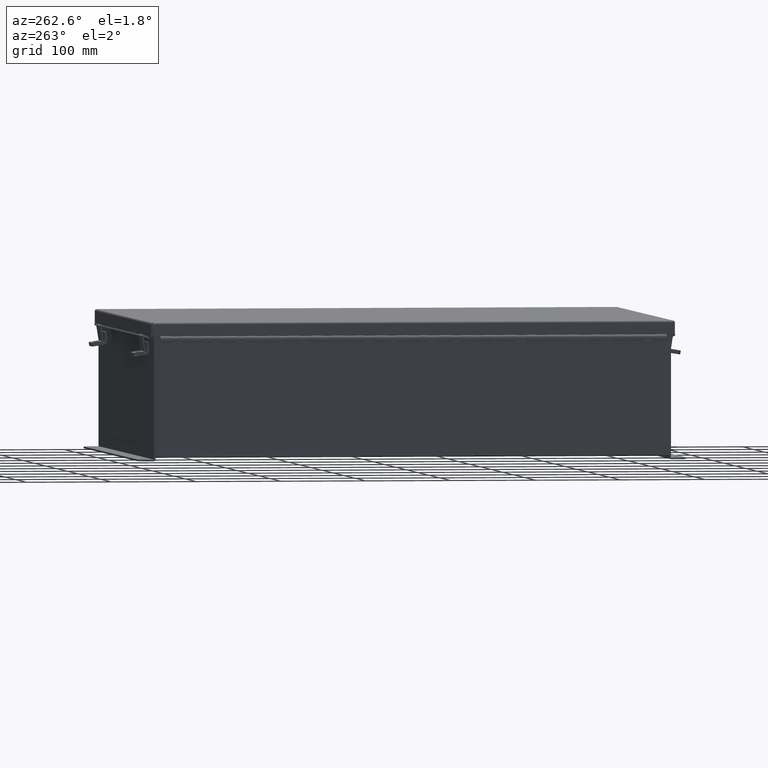
[diagram: clean part render]
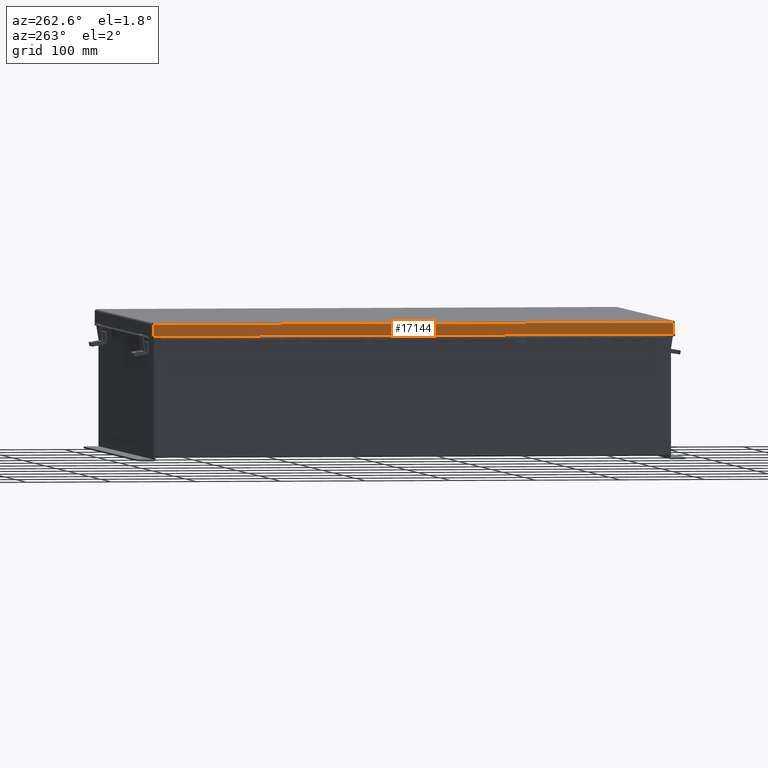
[diagram: same view with one face highlighted and labeled with its STEP entity id]
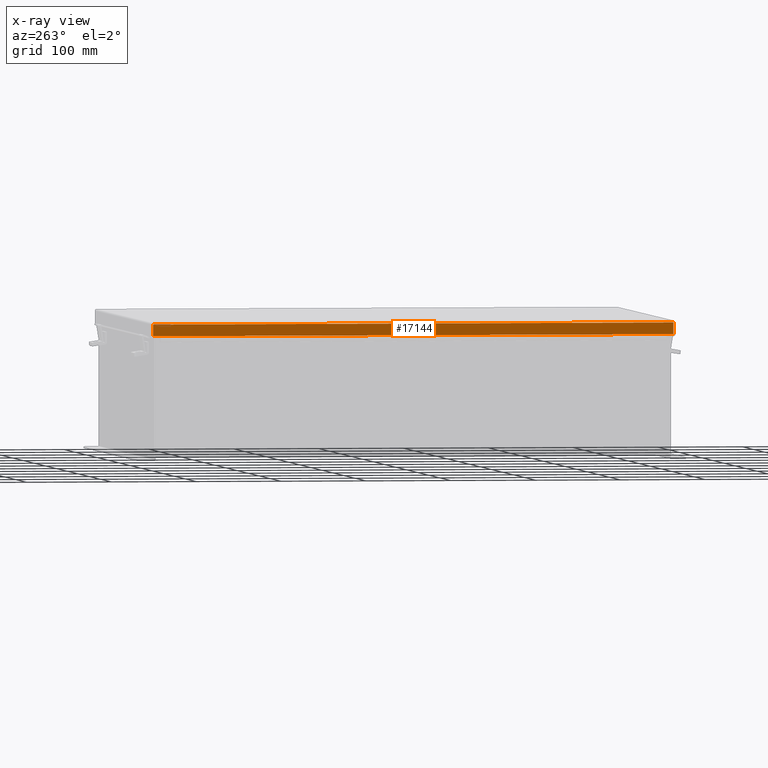
[diagram: x-ray of the same camera — body ghosted, the highlighted face saturated]
A machine part, auxiliary view. The second image highlights one B-rep face of the part: STEP entity #17144.
The next image is the same camera in x-ray: the body ghosted, the highlighted face saturated — about 0% of this face is hidden behind the body in this view.
In plain terms, the highlighted planar face has unit normal (1, -0, 0).
Its self-contained STEP definition (entity closure, byte-faithful):
#290 = EDGE_CURVE ( 'NONE', #6574, #863, #17096, .T. ) ;
#400 = ORIENTED_EDGE ( 'NONE', *, *, #290, .T. ) ;
#490 = CARTESIAN_POINT ( 'NONE',  ( 10.15625000000003900, -12.15625000000000000, 0.01300000000000010700 ) ) ;
#858 = CARTESIAN_POINT ( 'NONE',  ( 10.15625000000003900, -12.07447893218813400, 0.01300000000000010700 ) ) ;
#863 = VERTEX_POINT ( 'NONE', #19201 ) ;
#1346 = DIRECTION ( 'NONE',  ( -3.166671605124525800E-030, -1.000000000000000000, -1.853823127269377700E-029 ) ) ;
#1651 = ORIENTED_EDGE ( 'NONE', *, *, #2360, .F. ) ;
#2232 = LINE ( 'NONE', #10739, #8886 ) ;
#2360 = EDGE_CURVE ( 'NONE', #16558, #863, #18130, .T. ) ;
#2836 = EDGE_CURVE ( 'NONE', #9513, #16558, #20386, .T. ) ;
#2881 = CARTESIAN_POINT ( 'NONE',  ( 10.15625000000003600, 0.0000000000000000000, -4.043135030623109600E-014 ) ) ;
#4356 = AXIS2_PLACEMENT_3D ( 'NONE', #2881, #23121, #14144 ) ;
#6354 = PLANE ( 'NONE',  #4356 ) ;
#6574 = VERTEX_POINT ( 'NONE', #24324 ) ;
#8886 = VECTOR ( 'NONE', #10314, 39.37007874015748100 ) ;
#9513 = VERTEX_POINT ( 'NONE', #24081 ) ;
#9601 = DIRECTION ( 'NONE',  ( 3.971430846686186800E-015, 1.846427556282924300E-029, 1.000000000000000000 ) ) ;
#9744 = EDGE_LOOP ( 'NONE', ( #15887, #21896, #400, #1651 ) ) ;
#10314 = DIRECTION ( 'NONE',  ( 3.971430846686186800E-015, 1.846427556282924300E-029, 1.000000000000000000 ) ) ;
#10739 = CARTESIAN_POINT ( 'NONE',  ( 10.15625000000003900, 12.07447893218813400, -4.043135030623109600E-014 ) ) ;
#11842 = EDGE_CURVE ( 'NONE', #9513, #6574, #2232, .T. ) ;
#12276 = VECTOR ( 'NONE', #21206, 39.37007874015748100 ) ;
#13696 = VECTOR ( 'NONE', #9601, 39.37007874015748100 ) ;
#14144 = DIRECTION ( 'NONE',  ( 3.971430846686186800E-015, 1.846427556282924000E-029, 1.000000000000000000 ) ) ;
#15887 = ORIENTED_EDGE ( 'NONE', *, *, #2836, .F. ) ;
#16558 = VERTEX_POINT ( 'NONE', #858 ) ;
#17096 = LINE ( 'NONE', #19495, #12276 ) ;
#17144 = ADVANCED_FACE ( 'NONE', ( #19272 ), #6354, .F. ) ;
#18130 = LINE ( 'NONE', #23538, #13696 ) ;
#19201 = CARTESIAN_POINT ( 'NONE',  ( 10.15625000000003600, -12.07447893218813400, 0.5503000000000010100 ) ) ;
#19272 = FACE_OUTER_BOUND ( 'NONE', #9744, .T. ) ;
#19495 = CARTESIAN_POINT ( 'NONE',  ( 10.15625000000003900, 0.0000000000000000000, 0.5502999999999999000 ) ) ;
#20386 = LINE ( 'NONE', #490, #24557 ) ;
#21206 = DIRECTION ( 'NONE',  ( -3.166671605124525800E-030, -1.000000000000000000, -1.853823127269377700E-029 ) ) ;
#21896 = ORIENTED_EDGE ( 'NONE', *, *, #11842, .T. ) ;
#23121 = DIRECTION ( 'NONE',  ( -1.000000000000000000, -3.214874041279299500E-030, 3.971430846686186800E-015 ) ) ;
#23538 = CARTESIAN_POINT ( 'NONE',  ( 10.15625000000003900, -12.07447893218813400, 0.0000000000000000000 ) ) ;
#24081 = CARTESIAN_POINT ( 'NONE',  ( 10.15625000000003900, 12.07447893218813000, 0.01300000000000010700 ) ) ;
#24324 = CARTESIAN_POINT ( 'NONE',  ( 10.15625000000003600, 12.07447893218813000, 0.5503000000000085600 ) ) ;
#24557 = VECTOR ( 'NONE', #1346, 39.37007874015748100 ) ;